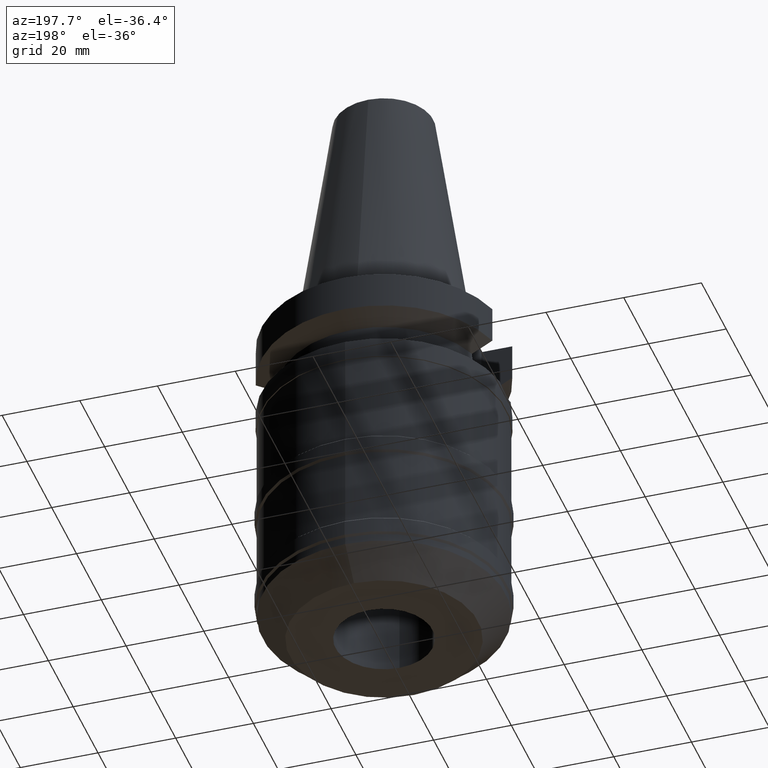
[diagram: clean part render]
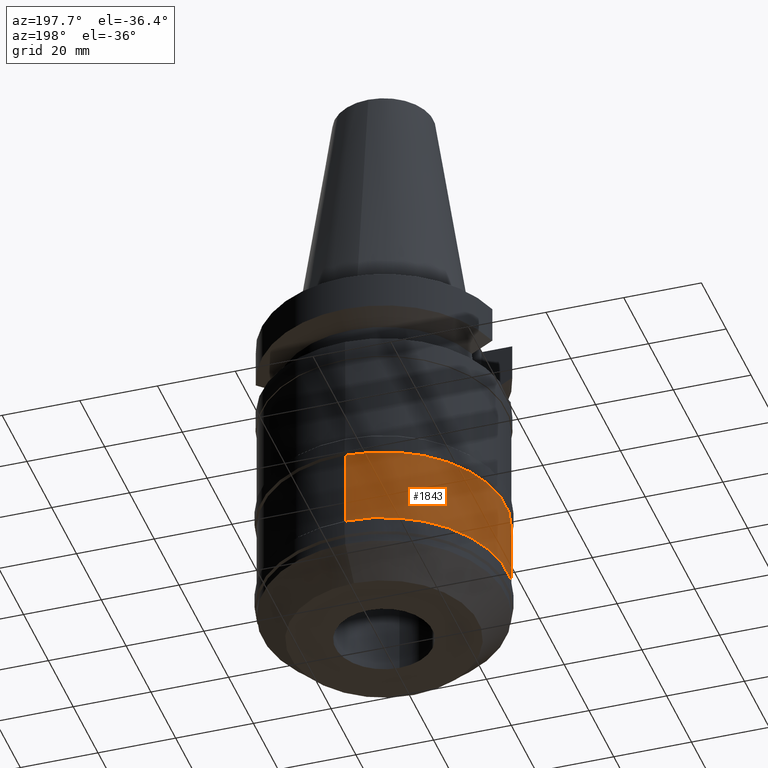
[diagram: same view with one face highlighted and labeled with its STEP entity id]
A machine part, auxiliary view. The second image highlights one B-rep face of the part: STEP entity #1843.
In plain terms, the highlighted cylindrical surface (partial cylindrical patch) has radius 31.25 mm, axis along (0, 0, -1).
Its self-contained STEP definition (entity closure, byte-faithful):
#773=CARTESIAN_POINT('',(0.E0,0.E0,-5.6E1));
#774=DIRECTION('',(0.E0,0.E0,-1.E0));
#775=DIRECTION('',(0.E0,-1.E0,0.E0));
#776=AXIS2_PLACEMENT_3D('',#773,#774,#775);
#781=DIRECTION('',(0.E0,0.E0,-1.E0));
#782=VECTOR('',#781,2.E1);
#783=CARTESIAN_POINT('',(0.E0,-3.125E1,-5.6E1));
#784=LINE('',#783,#782);
#788=DIRECTION('',(0.E0,0.E0,-1.E0));
#789=VECTOR('',#788,2.E1);
#790=CARTESIAN_POINT('',(0.E0,3.125E1,-5.6E1));
#791=LINE('',#790,#789);
#818=CARTESIAN_POINT('',(0.E0,0.E0,-7.6E1));
#819=DIRECTION('',(0.E0,0.E0,1.E0));
#820=DIRECTION('',(0.E0,1.E0,0.E0));
#821=AXIS2_PLACEMENT_3D('',#818,#819,#820);
#1165=CARTESIAN_POINT('',(0.E0,3.125E1,-7.6E1));
#1166=VERTEX_POINT('',#1165);
#1167=CARTESIAN_POINT('',(0.E0,-3.125E1,-7.6E1));
#1168=VERTEX_POINT('',#1167);
#1169=CARTESIAN_POINT('',(0.E0,3.125E1,-5.6E1));
#1170=VERTEX_POINT('',#1169);
#1171=CARTESIAN_POINT('',(0.E0,-3.125E1,-5.6E1));
#1172=VERTEX_POINT('',#1171);
#1829=CARTESIAN_POINT('',(0.E0,2.120720862083E-14,7.317E1));
#1830=DIRECTION('',(0.E0,0.E0,-1.E0));
#1831=DIRECTION('',(0.E0,-1.E0,0.E0));
#1832=AXIS2_PLACEMENT_3D('',#1829,#1830,#1831);
#1833=CYLINDRICAL_SURFACE('',#1832,3.125E1);
#1835=ORIENTED_EDGE('',*,*,#1834,.F.);
#1836=ORIENTED_EDGE('',*,*,#1824,.F.);
#1838=ORIENTED_EDGE('',*,*,#1837,.T.);
#1840=ORIENTED_EDGE('',*,*,#1839,.F.);
#1841=EDGE_LOOP('',(#1835,#1836,#1838,#1840));
#1842=FACE_OUTER_BOUND('',#1841,.F.);
#777=CIRCLE('',#776,3.125E1);
#822=CIRCLE('',#821,3.125E1);
#1824=EDGE_CURVE('',#1172,#1170,#777,.T.);
#1834=EDGE_CURVE('',#1170,#1166,#791,.T.);
#1837=EDGE_CURVE('',#1172,#1168,#784,.T.);
#1839=EDGE_CURVE('',#1166,#1168,#822,.T.);
#1843=ADVANCED_FACE('',(#1842),#1833,.T.);